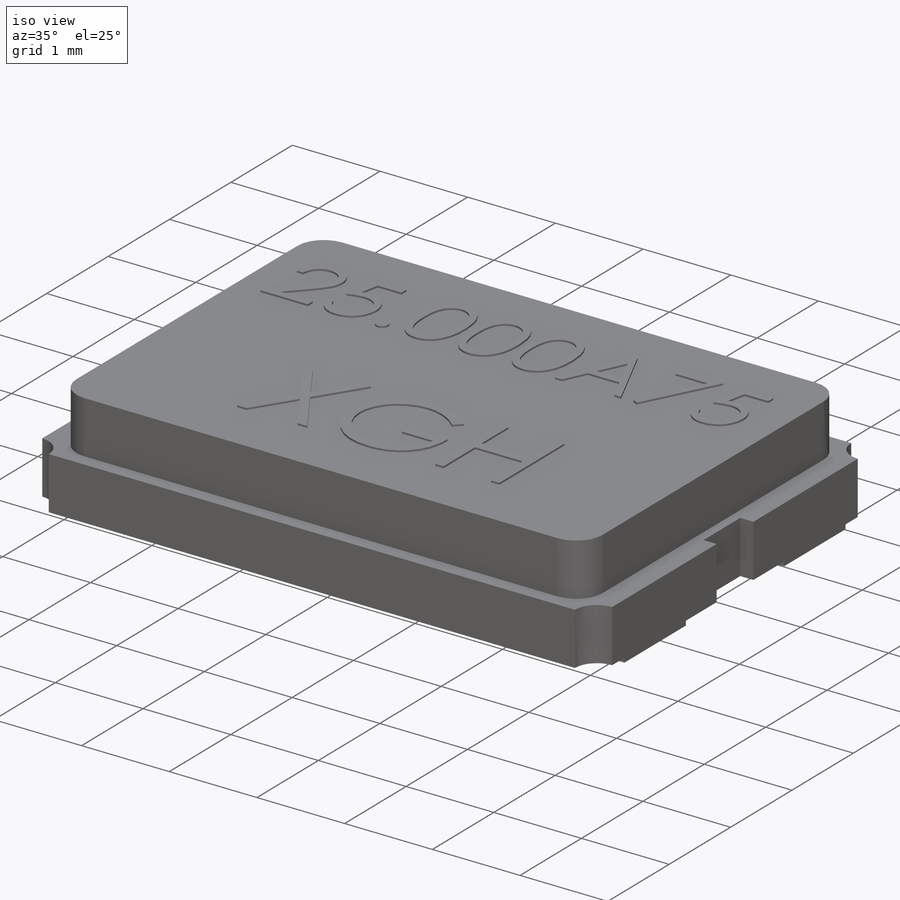
[diagram: iso view]
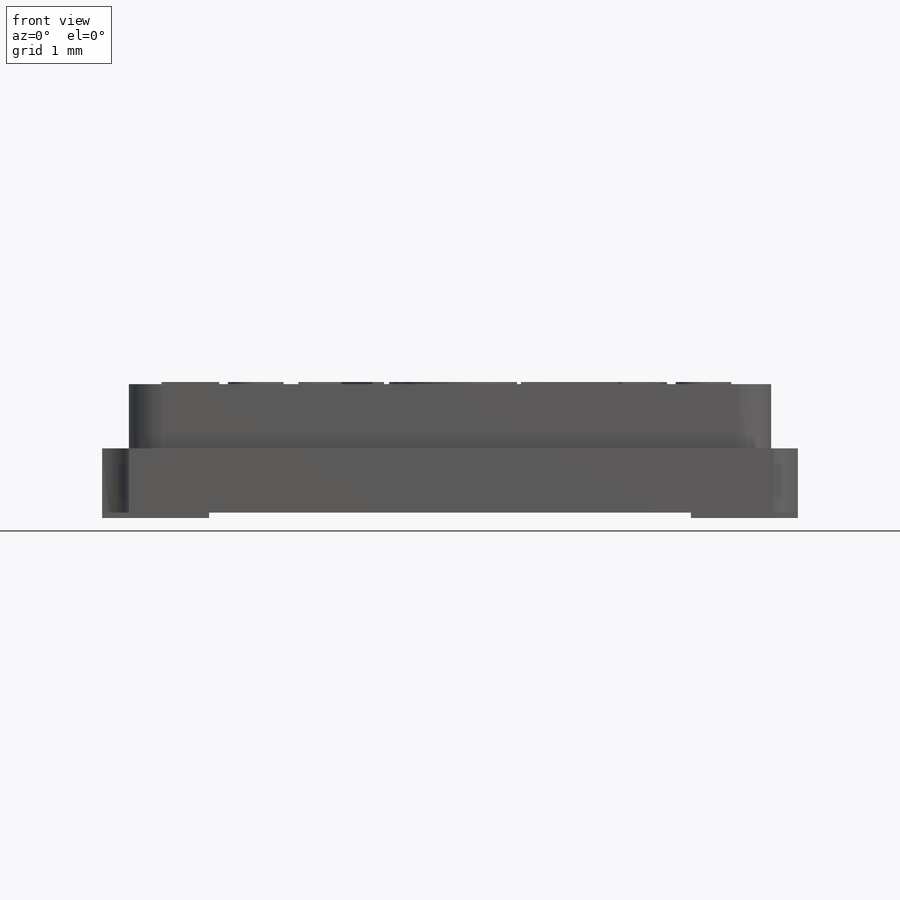
[diagram: front view]
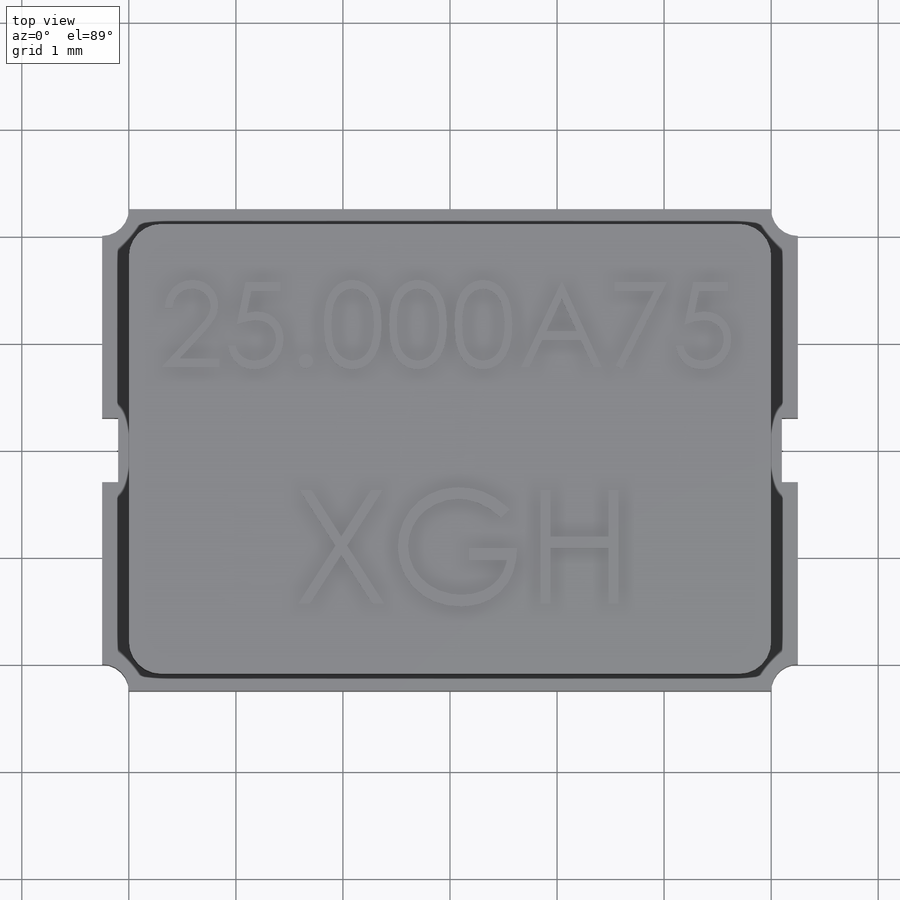
[diagram: top view]
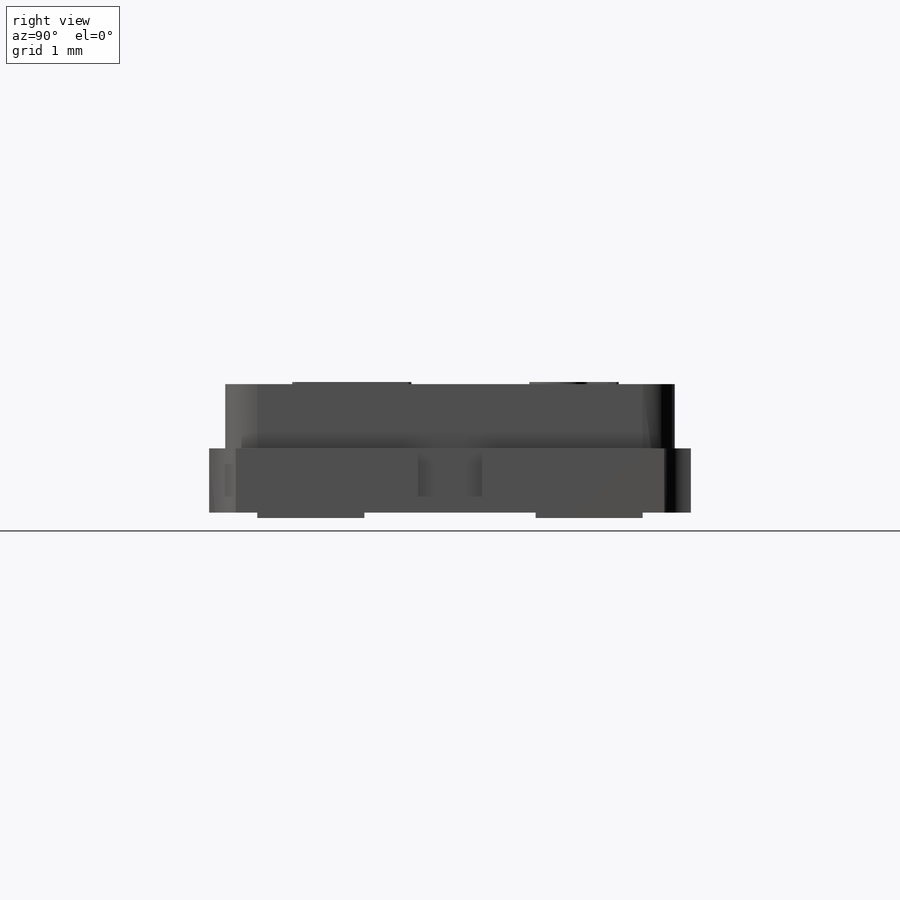
[diagram: right view]
SOLIDWORKS PART (.sldprt)
format: sldprt  version: not decoded by parser v0  size: 478,720 bytes
history: native  units: mm
features: sketch x5, extrude x5, plane x3, material x1 (+9 scaffold rows collapsed)
feature tree (23):
  scaffold x9  (default folders/planes/origin — collapsed)
  material  "Material <not specified>"
  plane  "Plano frontal"
  plane  "Plano superior"
  plane  "Plano direito"
  sketch  "Sketch1"  dims[c1.D5=0.25mm c1.D6=0.25mm c1.D7=0.25mm c1.D8=0.25mm c1.D1=6.0mm c1.D2=3.0mm c1.D3=3.5mm c1.D4=1.75mm c1.D9=0.6mm c1.D10=0.3mm c1.D11=0.15mm c1.D12=0.15mm c2.D2=1.7mm c2.D3=1.7mm c2.D4=1.7mm c2.D13=0.6mm c2.D14=6.0mm c2.D15=6.0mm c2.D16=3.0mm c2.D17=0.25mm c2.D18=0.25mm c2.D19=0.25mm c2.D20=0.25mm]
  extrude  "Extrude1"  Depth=0.6mm
  sketch  "Sketch2"  dims[c1.D4=0.3mm c1.D1=3.0mm c1.D2=6.0mm c1.D3=4.2mm c2.D4=1.6mm c2.D3=2.1mm c2.D5=2.1mm]
  extrude  "Extrude2"  Depth=0.6mm
  sketch  "Sketch3"  dims[c1.D1=1.0mm c1.D2=1.4mm c1.D3=0.7mm c1.D4=1.0mm c2.D1=1.0mm c2.D2=1.0mm c2.D3=1.0mm c2.D4=1.0mm c2.D5=1.0mm c2.D6=1.0mm c2.D7=1.0mm c2.D8=1.0mm c2.D9=0.8mm c2.D10=0.8mm c2.D11=0.8mm c2.D12=0.8mm]
  extrude  "Extrude3"  Depth=0.05mm
  sketch  "Sketch4"
  extrude  "Extrude4"  Depth=0.02mm
  sketch  "Sketch5"
  extrude  "Extrude5"  Depth=0.02mm
decode coverage: 8 of 10 modeling features carry decoded parameters
note: suppression state not decoded; provenance and decode notes live in map.json
